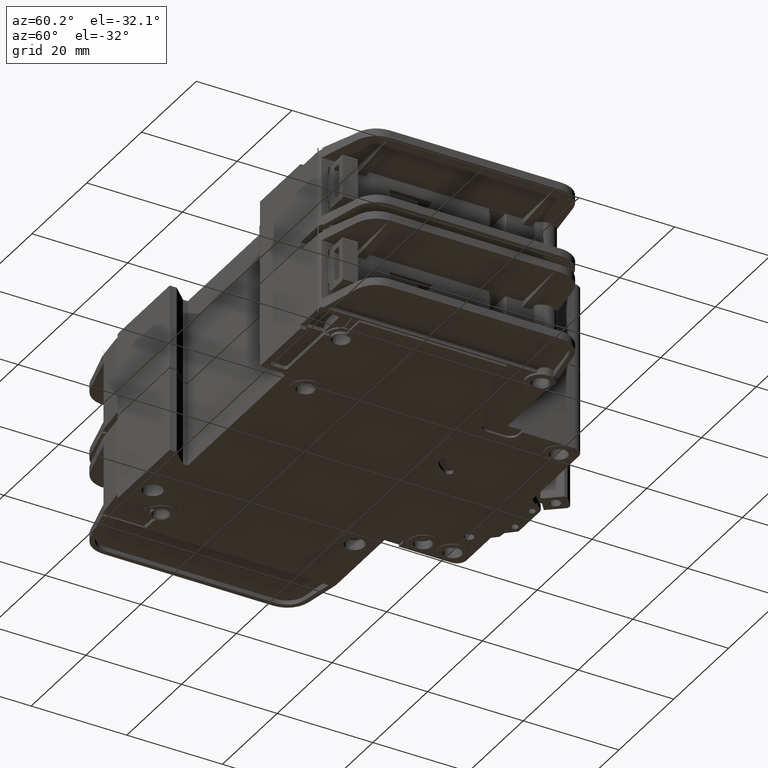
[diagram: clean part render]
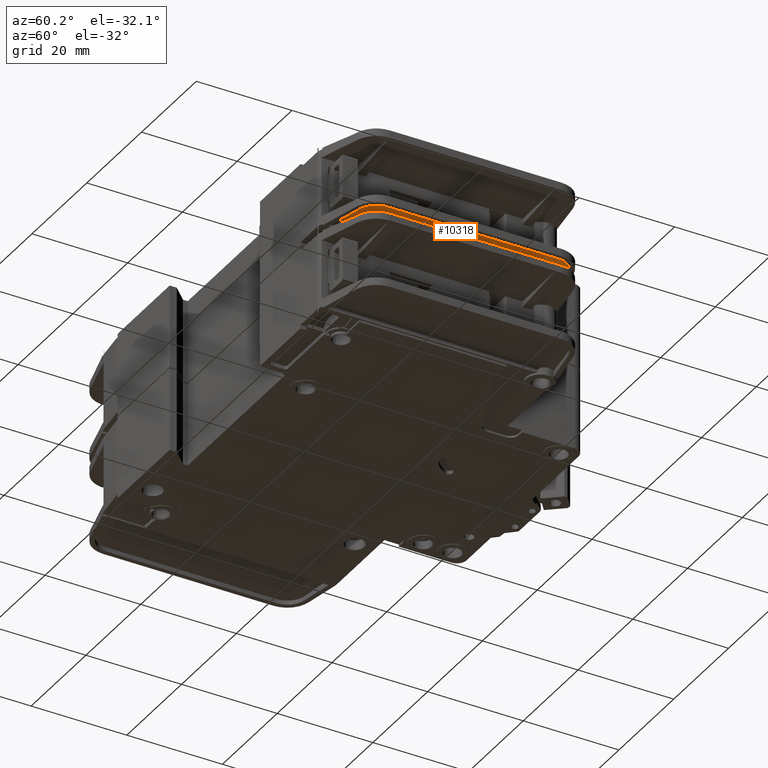
[diagram: same view with one face highlighted and labeled with its STEP entity id]
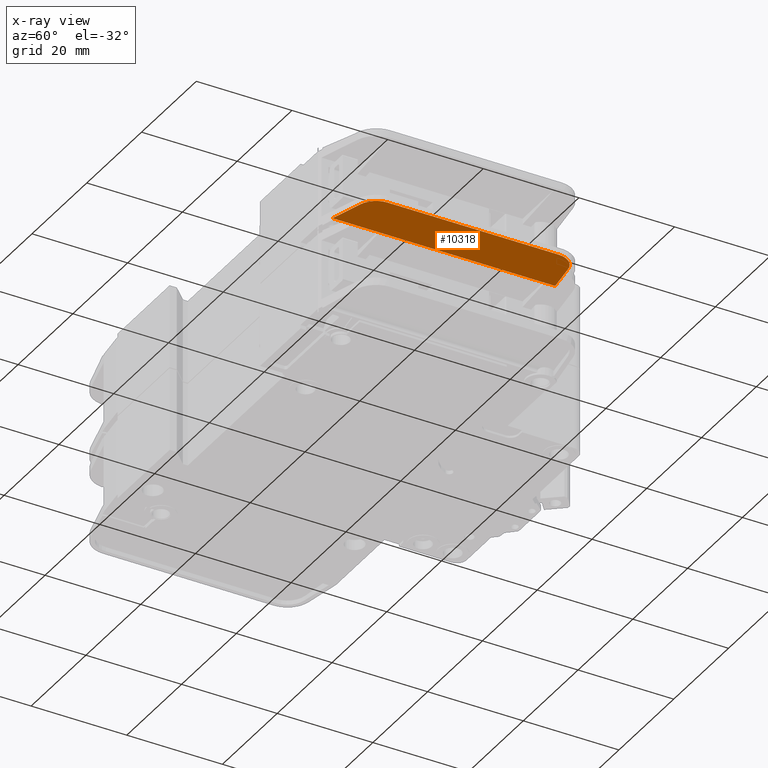
[diagram: x-ray of the same camera — body ghosted, the highlighted face saturated]
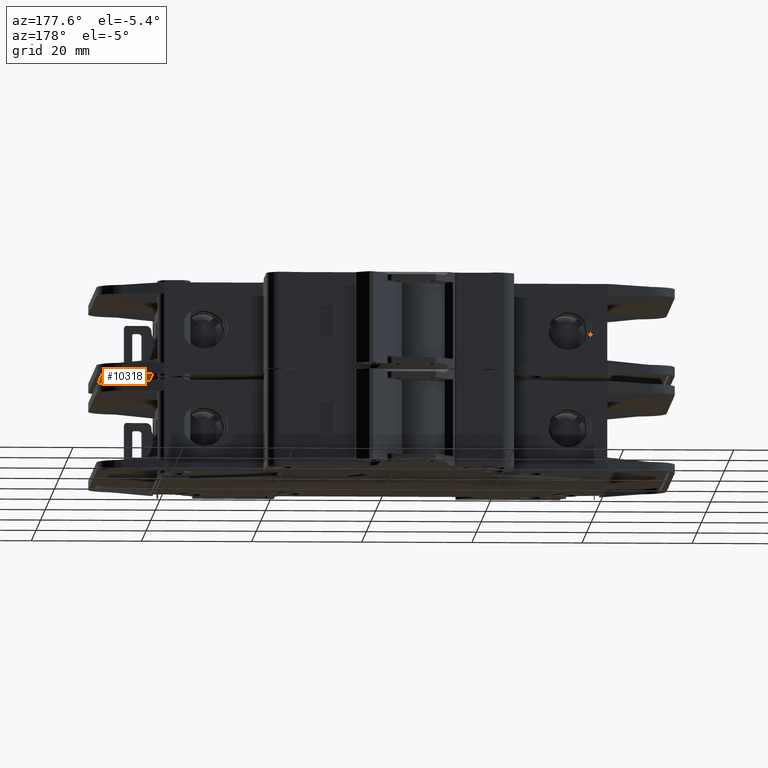
[diagram: same view with one face highlighted and labeled with its STEP entity id]
A machine part, auxiliary view. The second image highlights one B-rep face of the part: STEP entity #10318.
The next image is the same camera in x-ray: the body ghosted, the highlighted face saturated — about 0% of this face is hidden behind the body in this view.
A second angle (auxiliary view) of the same face is appended — the face is thin or edge-on in the first view.
In plain terms, the highlighted planar face has unit normal (-0, 0, 1).
Its self-contained STEP definition (entity closure, byte-faithful):
#1306 = CIRCLE ( 'NONE', #38965, 3.999999999998740600 ) ;
#1323 = DIRECTION ( 'NONE',  ( 1.000000000000000000, 0.0000000000000000000, 0.0000000000000000000 ) ) ;
#1551 = AXIS2_PLACEMENT_3D ( 'NONE', #31286, #23973, #1323 ) ;
#1870 = CARTESIAN_POINT ( 'NONE',  ( 91.50000000000395100, 43.52402657815239500, -7.000000000000000000 ) ) ;
#1953 = ORIENTED_EDGE ( 'NONE', *, *, #48554, .F. ) ;
#3295 = CARTESIAN_POINT ( 'NONE',  ( 7.783983768871183700, 58.21798132007016600, -7.000000000000000000 ) ) ;
#4563 = ORIENTED_EDGE ( 'NONE', *, *, #40703, .F. ) ;
#6221 = EDGE_CURVE ( 'NONE', #26902, #11814, #7398, .T. ) ;
#6294 = CARTESIAN_POINT ( 'NONE',  ( 6.741108373171290000, -21.65232659492135500, -7.000000000000000000 ) ) ;
#7398 = LINE ( 'NONE', #41781, #27577 ) ;
#9131 = CARTESIAN_POINT ( 'NONE',  ( 88.68904278847249100, 3.860862688887578600, -7.000000000000000000 ) ) ;
#10318 = ADVANCED_FACE ( 'NONE', ( #30426 ), #46732, .F. ) ;
#10508 = DIRECTION ( 'NONE',  ( 0.0000000000000000000, 1.000000000000000000, -0.0000000000000000000 ) ) ;
#10686 = ORIENTED_EDGE ( 'NONE', *, *, #20056, .F. ) ;
#11814 = VERTEX_POINT ( 'NONE', #37111 ) ;
#11990 = LINE ( 'NONE', #3295, #32193 ) ;
#13422 = DIRECTION ( 'NONE',  ( -0.0000000000000000000, 0.0000000000000000000, 1.000000000000000000 ) ) ;
#14938 = AXIS2_PLACEMENT_3D ( 'NONE', #36142, #13422, #40003 ) ;
#14997 = VERTEX_POINT ( 'NONE', #1870 ) ;
#15458 = EDGE_CURVE ( 'NONE', #47701, #18978, #28949, .T. ) ;
#16171 = EDGE_LOOP ( 'NONE', ( #27514, #44636, #1953, #4563, #10686, #34483 ) ) ;
#17886 = VECTOR ( 'NONE', #32797, 1000.000000000000000 ) ;
#17974 = VERTEX_POINT ( 'NONE', #32879 ) ;
#18955 = DIRECTION ( 'NONE',  ( 2.529597909461247700E-015, 1.000000000000000000, -0.0000000000000000000 ) ) ;
#18978 = VERTEX_POINT ( 'NONE', #28778 ) ;
#20056 = EDGE_CURVE ( 'NONE', #18978, #14997, #47308, .T. ) ;
#21131 = DIRECTION ( 'NONE',  ( -0.0000000000000000000, 0.0000000000000000000, 1.000000000000000000 ) ) ;
#23973 = DIRECTION ( 'NONE',  ( -0.0000000000000000000, 0.0000000000000000000, 1.000000000000000000 ) ) ;
#25957 = DIRECTION ( 'NONE',  ( -0.9911796891102210300, 0.1325248048305129300, 0.0000000000000000000 ) ) ;
#26902 = VERTEX_POINT ( 'NONE', #48453 ) ;
#27107 = VECTOR ( 'NONE', #10508, 1000.000000000000000 ) ;
#27514 = ORIENTED_EDGE ( 'NONE', *, *, #48407, .F. ) ;
#27577 = VECTOR ( 'NONE', #18955, 1000.000000000000000 ) ;
#28778 = CARTESIAN_POINT ( 'NONE',  ( 91.50000000000395100, 7.680048105595450800, -7.000000000000000000 ) ) ;
#28949 = CIRCLE ( 'NONE', #14938, 4.000000000000558700 ) ;
#30426 = FACE_OUTER_BOUND ( 'NONE', #16171, .T. ) ;
#31286 = CARTESIAN_POINT ( 'NONE',  ( 0.0000000000000000000, 0.0000000000000000000, -7.000000000000000000 ) ) ;
#32193 = VECTOR ( 'NONE', #25957, 1000.000000000000000 ) ;
#32797 = DIRECTION ( 'NONE',  ( 0.9547963541768541600, 0.2972606971171723500, 0.0000000000000000000 ) ) ;
#32879 = CARTESIAN_POINT ( 'NONE',  ( 88.03009921932518000, 47.48874533459019900, -7.000000000000000000 ) ) ;
#34483 = ORIENTED_EDGE ( 'NONE', *, *, #15458, .F. ) ;
#36142 = CARTESIAN_POINT ( 'NONE',  ( 87.50000000000339600, 7.680048105595450800, -7.000000000000000000 ) ) ;
#37111 = CARTESIAN_POINT ( 'NONE',  ( 81.90000000000317500, 48.30836483603661700, -7.000000000000000000 ) ) ;
#38965 = AXIS2_PLACEMENT_3D ( 'NONE', #43910, #21131, #47756 ) ;
#40003 = DIRECTION ( 'NONE',  ( 1.000000000000000000, 0.0000000000000000000, 0.0000000000000000000 ) ) ;
#40703 = EDGE_CURVE ( 'NONE', #14997, #17974, #1306, .T. ) ;
#40890 = CARTESIAN_POINT ( 'NONE',  ( 91.50000000000395100, 0.0000000000000000000, -7.000000000000000000 ) ) ;
#41781 = CARTESIAN_POINT ( 'NONE',  ( 81.90000000000317500, 45.17386397196136000, -7.000000000000000000 ) ) ;
#43910 = CARTESIAN_POINT ( 'NONE',  ( 87.50000000000339600, 43.52402657815239500, -7.000000000000000000 ) ) ;
#44636 = ORIENTED_EDGE ( 'NONE', *, *, #6221, .T. ) ;
#46732 = PLANE ( 'NONE',  #1551 ) ;
#47069 = LINE ( 'NONE', #6294, #17886 ) ;
#47308 = LINE ( 'NONE', #40890, #27107 ) ;
#47701 = VERTEX_POINT ( 'NONE', #9131 ) ;
#47756 = DIRECTION ( 'NONE',  ( 1.000000000000000000, 0.0000000000000000000, 0.0000000000000000000 ) ) ;
#48407 = EDGE_CURVE ( 'NONE', #26902, #47701, #47069, .T. ) ;
#48453 = CARTESIAN_POINT ( 'NONE',  ( 81.90000000000306100, 1.747201924233124300, -7.000000000000000000 ) ) ;
#48554 = EDGE_CURVE ( 'NONE', #17974, #11814, #11990, .T. ) ;